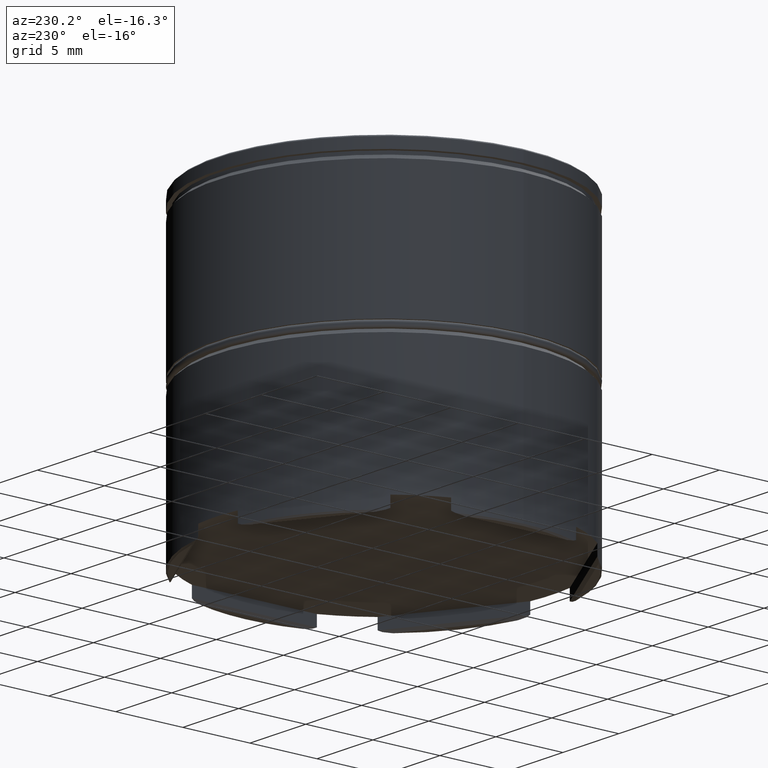
[diagram: clean part render]
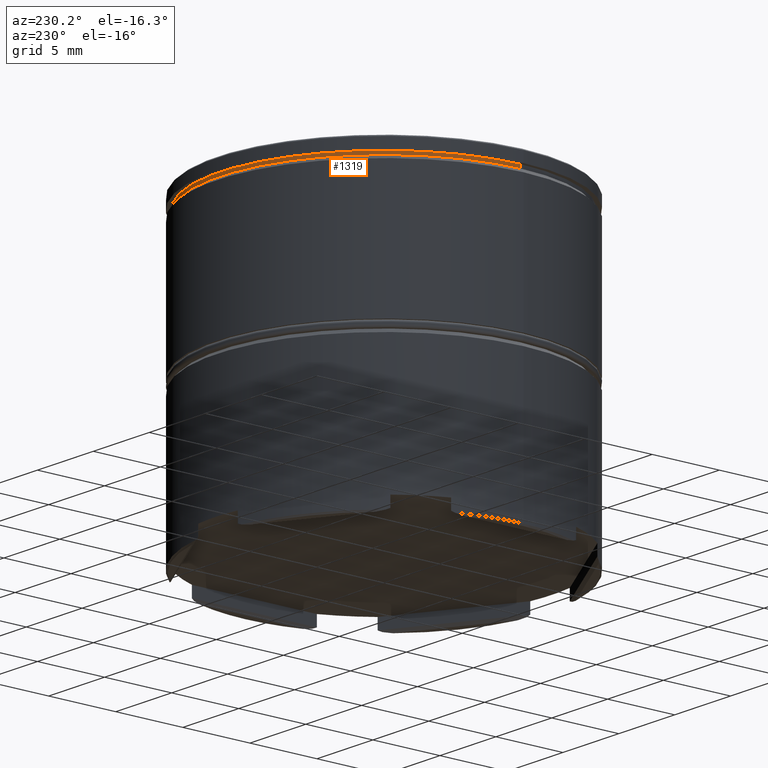
[diagram: same view with one face highlighted and labeled with its STEP entity id]
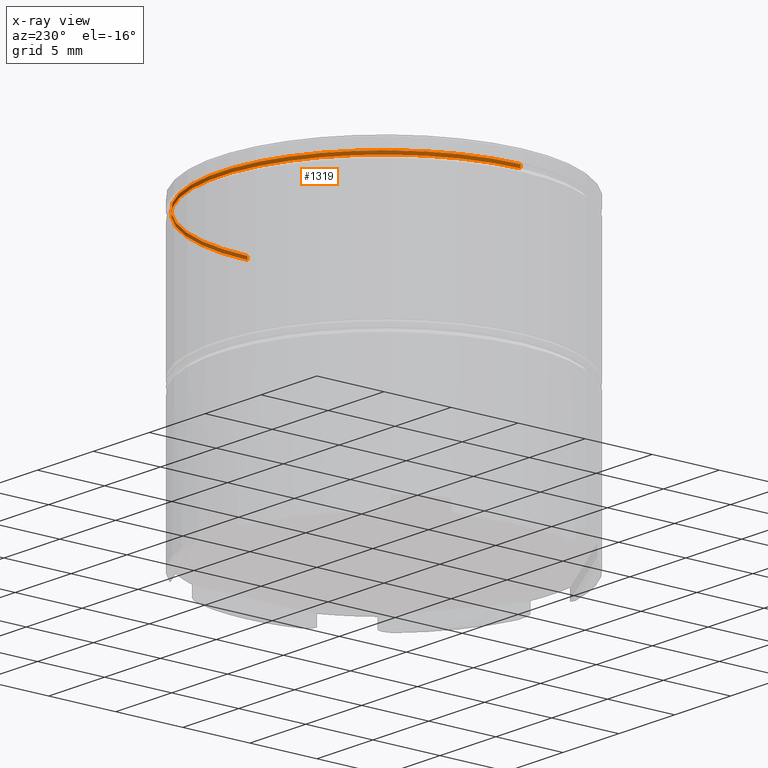
[diagram: x-ray of the same camera — body ghosted, the highlighted face saturated]
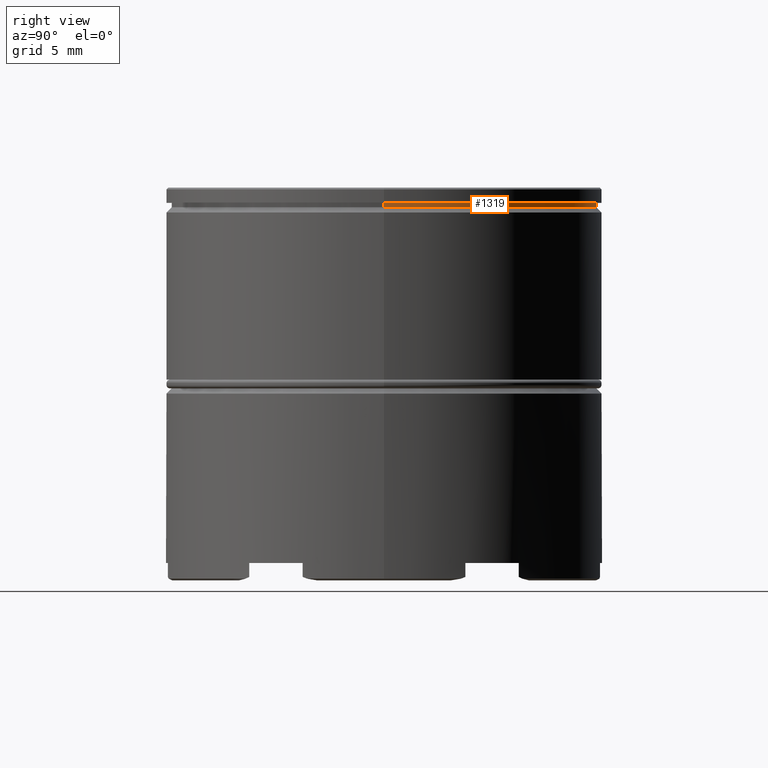
[diagram: same view with one face highlighted and labeled with its STEP entity id]
A machine part, auxiliary view. The second image highlights one B-rep face of the part: STEP entity #1319.
The next image is the same camera in x-ray: the body ghosted, the highlighted face saturated — about 18% of this face is hidden behind the body in this view.
A second angle (right view) of the same face is appended — the face is thin or edge-on in the first view.
In plain terms, the highlighted cylindrical surface (partial cylindrical patch) has radius 12.2 mm, axis along (-0, -0, 1).
Its self-contained STEP definition (entity closure, byte-faithful):
#11 = EDGE_LOOP ( 'NONE', ( #213, #1433, #762, #662 ) ) ;
#41 = EDGE_CURVE ( 'NONE', #272, #654, #1297, .T. ) ;
#162 = CARTESIAN_POINT ( 'NONE',  ( -12.20000000000000107, 1.494069094959771056E-15, 0.000000000000000000 ) ) ;
#213 = ORIENTED_EDGE ( 'NONE', *, *, #898, .T. ) ;
#268 = VECTOR ( 'NONE', #406, 1000.000000000000000 ) ;
#272 = VERTEX_POINT ( 'NONE', #841 ) ;
#406 = DIRECTION ( 'NONE',  ( -0.000000000000000000, -0.000000000000000000, 1.000000000000000000 ) ) ;
#640 = VECTOR ( 'NONE', #1629, 1000.000000000000000 ) ;
#654 = VERTEX_POINT ( 'NONE', #1266 ) ;
#661 = EDGE_CURVE ( 'NONE', #1419, #1034, #1389, .T. ) ;
#662 = ORIENTED_EDGE ( 'NONE', *, *, #661, .F. ) ;
#699 = DIRECTION ( 'NONE',  ( -0.000000000000000000, -0.000000000000000000, 1.000000000000000000 ) ) ;
#713 = CARTESIAN_POINT ( 'NONE',  ( 0.000000000000000000, 0.000000000000000000, -1.125000000000000222 ) ) ;
#731 = CYLINDRICAL_SURFACE ( 'NONE', #1448, 12.20000000000000107 ) ;
#762 = ORIENTED_EDGE ( 'NONE', *, *, #1598, .F. ) ;
#822 = CARTESIAN_POINT ( 'NONE',  ( 12.20000000000000107, 0.000000000000000000, -0.8749999999999998890 ) ) ;
#838 = AXIS2_PLACEMENT_3D ( 'NONE', #1179, #1168, #1565 ) ;
#841 = CARTESIAN_POINT ( 'NONE',  ( -12.20000000000000107, 1.494069094959771056E-15, -1.125000000000000222 ) ) ;
#890 = FACE_OUTER_BOUND ( 'NONE', #11, .T. ) ;
#898 = EDGE_CURVE ( 'NONE', #1419, #272, #1615, .T. ) ;
#1034 = VERTEX_POINT ( 'NONE', #822 ) ;
#1078 = CIRCLE ( 'NONE', #838, 12.20000000000000107 ) ;
#1108 = DIRECTION ( 'NONE',  ( -0.000000000000000000, -0.000000000000000000, 1.000000000000000000 ) ) ;
#1109 = AXIS2_PLACEMENT_3D ( 'NONE', #713, #699, #1334 ) ;
#1162 = CARTESIAN_POINT ( 'NONE',  ( 12.20000000000000107, 0.000000000000000000, -1.125000000000000222 ) ) ;
#1168 = DIRECTION ( 'NONE',  ( -0.000000000000000000, -0.000000000000000000, 1.000000000000000000 ) ) ;
#1179 = CARTESIAN_POINT ( 'NONE',  ( 0.000000000000000000, 0.000000000000000000, -0.8749999999999998890 ) ) ;
#1237 = CARTESIAN_POINT ( 'NONE',  ( 0.000000000000000000, 0.000000000000000000, 0.000000000000000000 ) ) ;
#1266 = CARTESIAN_POINT ( 'NONE',  ( -12.20000000000000107, 1.494069094959771056E-15, -0.8749999999999998890 ) ) ;
#1297 = LINE ( 'NONE', #162, #268 ) ;
#1319 = ADVANCED_FACE ( 'NONE', ( #890 ), #731, .T. ) ;
#1334 = DIRECTION ( 'NONE',  ( 1.000000000000000000, 0.000000000000000000, 0.000000000000000000 ) ) ;
#1374 = DIRECTION ( 'NONE',  ( 1.000000000000000000, 0.000000000000000000, 0.000000000000000000 ) ) ;
#1389 = LINE ( 'NONE', #1636, #640 ) ;
#1419 = VERTEX_POINT ( 'NONE', #1162 ) ;
#1433 = ORIENTED_EDGE ( 'NONE', *, *, #41, .T. ) ;
#1448 = AXIS2_PLACEMENT_3D ( 'NONE', #1237, #1108, #1374 ) ;
#1565 = DIRECTION ( 'NONE',  ( 1.000000000000000000, 0.000000000000000000, 0.000000000000000000 ) ) ;
#1598 = EDGE_CURVE ( 'NONE', #1034, #654, #1078, .T. ) ;
#1615 = CIRCLE ( 'NONE', #1109, 12.20000000000000107 ) ;
#1629 = DIRECTION ( 'NONE',  ( -0.000000000000000000, -0.000000000000000000, 1.000000000000000000 ) ) ;
#1636 = CARTESIAN_POINT ( 'NONE',  ( 12.20000000000000107, 0.000000000000000000, 0.000000000000000000 ) ) ;